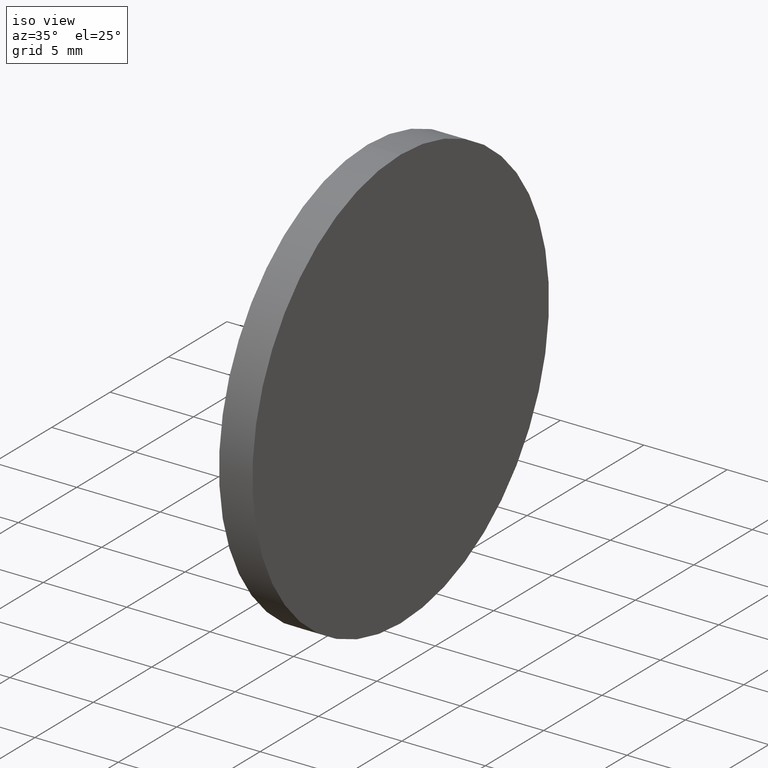
[diagram: clean part render]
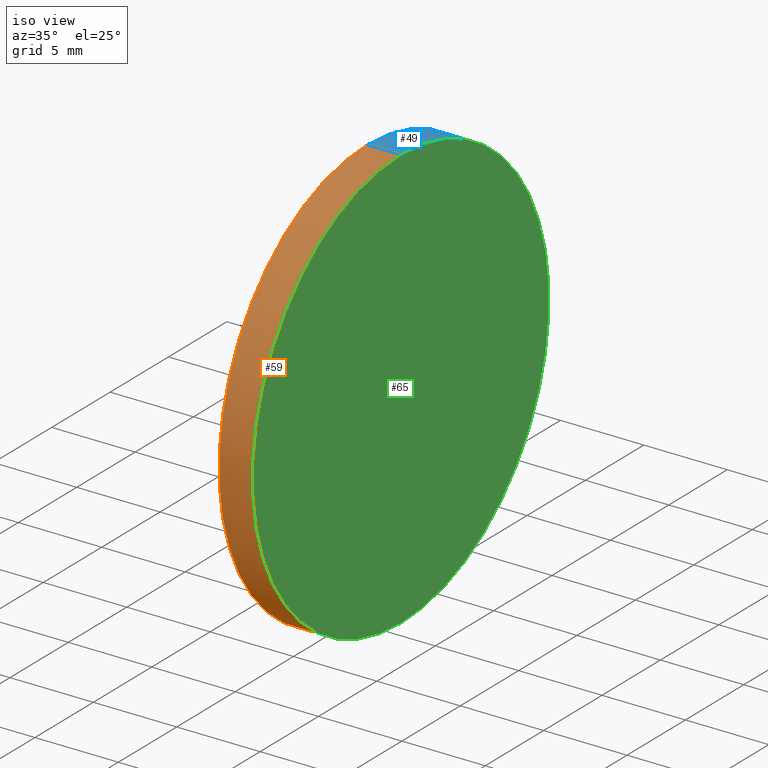
[diagram: same view with three faces highlighted in distinct colors, each labeled with its STEP entity id]
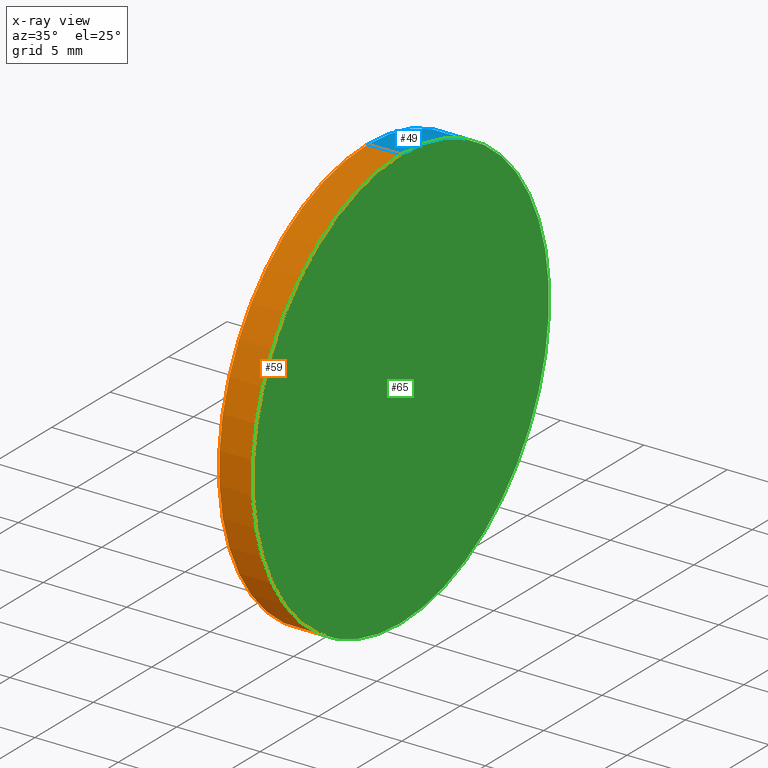
[diagram: x-ray of the same camera — body ghosted, the three highlighted faces saturated]
A machine part, iso view with three faces highlighted in distinct colors.
The next image is the same camera in x-ray (body ghosted, the three faces saturated) — at least one of them is partly hidden behind the body in this view.
Their STEP definitions:

[orange] entity #59 — the highlighted cylindrical surface (partial cylindrical patch) has radius 12.7 mm, axis along (-1, -0, -0).
#2 = VECTOR ( 'NONE', #17, 1000.000000000000000 ) ;
#3 = VERTEX_POINT ( 'NONE', #24 ) ;
#8 = DIRECTION ( 'NONE',  ( -1.000000000000000000, -0.0000000000000000000, -0.0000000000000000000 ) ) ;
#12 = VERTEX_POINT ( 'NONE', #117 ) ;
#16 = CARTESIAN_POINT ( 'NONE',  ( 117.7645554762012000, 65.23355492641219700, -12.70000000000000300 ) ) ;
#17 = DIRECTION ( 'NONE',  ( -1.000000000000000000, -0.0000000000000000000, -0.0000000000000000000 ) ) ;
#22 = CIRCLE ( 'NONE', #103, 12.70000000000000300 ) ;
#24 = CARTESIAN_POINT ( 'NONE',  ( 115.7645554762012000, 65.23355492641219700, 12.70000000000000300 ) ) ;
#25 = CARTESIAN_POINT ( 'NONE',  ( 110.1653732284884500, 65.23355492641219700, 0.0000000000000000000 ) ) ;
#28 = EDGE_LOOP ( 'NONE', ( #87, #137, #113, #133 ) ) ;
#31 = CARTESIAN_POINT ( 'NONE',  ( 110.1653732284884500, 65.23355492641219700, -12.70000000000000300 ) ) ;
#35 = AXIS2_PLACEMENT_3D ( 'NONE', #25, #37, #118 ) ;
#37 = DIRECTION ( 'NONE',  ( -1.000000000000000000, -0.0000000000000000000, -0.0000000000000000000 ) ) ;
#47 = VERTEX_POINT ( 'NONE', #56 ) ;
#51 = EDGE_CURVE ( 'NONE', #122, #47, #22, .T. ) ;
#56 = CARTESIAN_POINT ( 'NONE',  ( 117.7645554762012000, 65.23355492641219700, 12.70000000000000300 ) ) ;
#59 = ADVANCED_FACE ( 'NONE', ( #104 ), #84, .T. ) ;
#60 = CARTESIAN_POINT ( 'NONE',  ( 117.7645554762012000, 65.23355492641219700, 0.0000000000000000000 ) ) ;
#76 = CIRCLE ( 'NONE', #116, 12.70000000000000300 ) ;
#78 = CARTESIAN_POINT ( 'NONE',  ( 115.7645554762012000, 65.23355492641219700, 0.0000000000000000000 ) ) ;
#80 = VECTOR ( 'NONE', #96, 1000.000000000000000 ) ;
#82 = EDGE_CURVE ( 'NONE', #12, #3, #76, .T. ) ;
#84 = CYLINDRICAL_SURFACE ( 'NONE', #35, 12.70000000000000300 ) ;
#87 = ORIENTED_EDGE ( 'NONE', *, *, #91, .F. ) ;
#91 = EDGE_CURVE ( 'NONE', #122, #12, #108, .T. ) ;
#96 = DIRECTION ( 'NONE',  ( -1.000000000000000000, -0.0000000000000000000, -0.0000000000000000000 ) ) ;
#103 = AXIS2_PLACEMENT_3D ( 'NONE', #60, #126, #132 ) ;
#104 = FACE_OUTER_BOUND ( 'NONE', #28, .T. ) ;
#105 = LINE ( 'NONE', #140, #2 ) ;
#108 = LINE ( 'NONE', #31, #80 ) ;
#111 = DIRECTION ( 'NONE',  ( 0.0000000000000000000, 0.0000000000000000000, 1.000000000000000000 ) ) ;
#113 = ORIENTED_EDGE ( 'NONE', *, *, #121, .T. ) ;
#116 = AXIS2_PLACEMENT_3D ( 'NONE', #78, #8, #111 ) ;
#117 = CARTESIAN_POINT ( 'NONE',  ( 115.7645554762012000, 65.23355492641219700, -12.70000000000000300 ) ) ;
#118 = DIRECTION ( 'NONE',  ( 0.0000000000000000000, 0.0000000000000000000, 1.000000000000000000 ) ) ;
#121 = EDGE_CURVE ( 'NONE', #47, #3, #105, .T. ) ;
#122 = VERTEX_POINT ( 'NONE', #16 ) ;
#126 = DIRECTION ( 'NONE',  ( -1.000000000000000000, -0.0000000000000000000, -0.0000000000000000000 ) ) ;
#132 = DIRECTION ( 'NONE',  ( 0.0000000000000000000, 0.0000000000000000000, 1.000000000000000000 ) ) ;
#133 = ORIENTED_EDGE ( 'NONE', *, *, #82, .F. ) ;
#137 = ORIENTED_EDGE ( 'NONE', *, *, #51, .T. ) ;
#140 = CARTESIAN_POINT ( 'NONE',  ( 110.1653732284884500, 65.23355492641219700, 12.70000000000000300 ) ) ;

[blue] entity #49 — the highlighted cylindrical surface (partial cylindrical patch) has radius 12.7 mm, axis along (-1, -0, -0).
#2 = VECTOR ( 'NONE', #17, 1000.000000000000000 ) ;
#3 = VERTEX_POINT ( 'NONE', #24 ) ;
#7 = CARTESIAN_POINT ( 'NONE',  ( 117.7645554762012000, 65.23355492641219700, 0.0000000000000000000 ) ) ;
#10 = DIRECTION ( 'NONE',  ( 0.0000000000000000000, 0.0000000000000000000, 1.000000000000000000 ) ) ;
#11 = DIRECTION ( 'NONE',  ( -1.000000000000000000, -0.0000000000000000000, -0.0000000000000000000 ) ) ;
#12 = VERTEX_POINT ( 'NONE', #117 ) ;
#15 = ORIENTED_EDGE ( 'NONE', *, *, #124, .T. ) ;
#16 = CARTESIAN_POINT ( 'NONE',  ( 117.7645554762012000, 65.23355492641219700, -12.70000000000000300 ) ) ;
#17 = DIRECTION ( 'NONE',  ( -1.000000000000000000, -0.0000000000000000000, -0.0000000000000000000 ) ) ;
#24 = CARTESIAN_POINT ( 'NONE',  ( 115.7645554762012000, 65.23355492641219700, 12.70000000000000300 ) ) ;
#27 = CIRCLE ( 'NONE', #95, 12.70000000000000300 ) ;
#29 = AXIS2_PLACEMENT_3D ( 'NONE', #36, #83, #128 ) ;
#31 = CARTESIAN_POINT ( 'NONE',  ( 110.1653732284884500, 65.23355492641219700, -12.70000000000000300 ) ) ;
#36 = CARTESIAN_POINT ( 'NONE',  ( 110.1653732284884500, 65.23355492641219700, 0.0000000000000000000 ) ) ;
#39 = CARTESIAN_POINT ( 'NONE',  ( 115.7645554762012000, 65.23355492641219700, 0.0000000000000000000 ) ) ;
#41 = CIRCLE ( 'NONE', #110, 12.70000000000000300 ) ;
#47 = VERTEX_POINT ( 'NONE', #56 ) ;
#49 = ADVANCED_FACE ( 'NONE', ( #94 ), #52, .T. ) ;
#52 = CYLINDRICAL_SURFACE ( 'NONE', #29, 12.70000000000000300 ) ;
#56 = CARTESIAN_POINT ( 'NONE',  ( 117.7645554762012000, 65.23355492641219700, 12.70000000000000300 ) ) ;
#58 = ORIENTED_EDGE ( 'NONE', *, *, #91, .T. ) ;
#63 = ORIENTED_EDGE ( 'NONE', *, *, #121, .F. ) ;
#66 = DIRECTION ( 'NONE',  ( -1.000000000000000000, -0.0000000000000000000, -0.0000000000000000000 ) ) ;
#80 = VECTOR ( 'NONE', #96, 1000.000000000000000 ) ;
#83 = DIRECTION ( 'NONE',  ( -1.000000000000000000, -0.0000000000000000000, -0.0000000000000000000 ) ) ;
#91 = EDGE_CURVE ( 'NONE', #122, #12, #108, .T. ) ;
#92 = EDGE_LOOP ( 'NONE', ( #15, #58, #123, #63 ) ) ;
#94 = FACE_OUTER_BOUND ( 'NONE', #92, .T. ) ;
#95 = AXIS2_PLACEMENT_3D ( 'NONE', #7, #11, #10 ) ;
#96 = DIRECTION ( 'NONE',  ( -1.000000000000000000, -0.0000000000000000000, -0.0000000000000000000 ) ) ;
#98 = DIRECTION ( 'NONE',  ( 0.0000000000000000000, 0.0000000000000000000, 1.000000000000000000 ) ) ;
#99 = EDGE_CURVE ( 'NONE', #3, #12, #41, .T. ) ;
#105 = LINE ( 'NONE', #140, #2 ) ;
#108 = LINE ( 'NONE', #31, #80 ) ;
#110 = AXIS2_PLACEMENT_3D ( 'NONE', #39, #66, #98 ) ;
#117 = CARTESIAN_POINT ( 'NONE',  ( 115.7645554762012000, 65.23355492641219700, -12.70000000000000300 ) ) ;
#121 = EDGE_CURVE ( 'NONE', #47, #3, #105, .T. ) ;
#122 = VERTEX_POINT ( 'NONE', #16 ) ;
#123 = ORIENTED_EDGE ( 'NONE', *, *, #99, .F. ) ;
#124 = EDGE_CURVE ( 'NONE', #47, #122, #27, .T. ) ;
#128 = DIRECTION ( 'NONE',  ( 0.0000000000000000000, 0.0000000000000000000, 1.000000000000000000 ) ) ;
#140 = CARTESIAN_POINT ( 'NONE',  ( 110.1653732284884500, 65.23355492641219700, 12.70000000000000300 ) ) ;

[green] entity #65 — the highlighted planar face has unit normal (-1, 0, -0).
#7 = CARTESIAN_POINT ( 'NONE',  ( 117.7645554762012000, 65.23355492641219700, 0.0000000000000000000 ) ) ;
#10 = DIRECTION ( 'NONE',  ( 0.0000000000000000000, 0.0000000000000000000, 1.000000000000000000 ) ) ;
#11 = DIRECTION ( 'NONE',  ( -1.000000000000000000, -0.0000000000000000000, -0.0000000000000000000 ) ) ;
#16 = CARTESIAN_POINT ( 'NONE',  ( 117.7645554762012000, 65.23355492641219700, -12.70000000000000300 ) ) ;
#22 = CIRCLE ( 'NONE', #103, 12.70000000000000300 ) ;
#27 = CIRCLE ( 'NONE', #95, 12.70000000000000300 ) ;
#43 = ORIENTED_EDGE ( 'NONE', *, *, #124, .F. ) ;
#47 = VERTEX_POINT ( 'NONE', #56 ) ;
#51 = EDGE_CURVE ( 'NONE', #122, #47, #22, .T. ) ;
#54 = AXIS2_PLACEMENT_3D ( 'NONE', #114, #77, #74 ) ;
#56 = CARTESIAN_POINT ( 'NONE',  ( 117.7645554762012000, 65.23355492641219700, 12.70000000000000300 ) ) ;
#60 = CARTESIAN_POINT ( 'NONE',  ( 117.7645554762012000, 65.23355492641219700, 0.0000000000000000000 ) ) ;
#65 = ADVANCED_FACE ( 'NONE', ( #138 ), #67, .F. ) ;
#67 = PLANE ( 'NONE',  #54 ) ;
#74 = DIRECTION ( 'NONE',  ( -0.0000000000000000000, 0.0000000000000000000, 1.000000000000000000 ) ) ;
#77 = DIRECTION ( 'NONE',  ( -1.000000000000000000, 0.0000000000000000000, -0.0000000000000000000 ) ) ;
#81 = ORIENTED_EDGE ( 'NONE', *, *, #51, .F. ) ;
#95 = AXIS2_PLACEMENT_3D ( 'NONE', #7, #11, #10 ) ;
#102 = EDGE_LOOP ( 'NONE', ( #43, #81 ) ) ;
#103 = AXIS2_PLACEMENT_3D ( 'NONE', #60, #126, #132 ) ;
#114 = CARTESIAN_POINT ( 'NONE',  ( 117.7645554762012000, 65.23355492641219700, 0.0000000000000000000 ) ) ;
#122 = VERTEX_POINT ( 'NONE', #16 ) ;
#124 = EDGE_CURVE ( 'NONE', #47, #122, #27, .T. ) ;
#126 = DIRECTION ( 'NONE',  ( -1.000000000000000000, -0.0000000000000000000, -0.0000000000000000000 ) ) ;
#132 = DIRECTION ( 'NONE',  ( 0.0000000000000000000, 0.0000000000000000000, 1.000000000000000000 ) ) ;
#138 = FACE_OUTER_BOUND ( 'NONE', #102, .T. ) ;